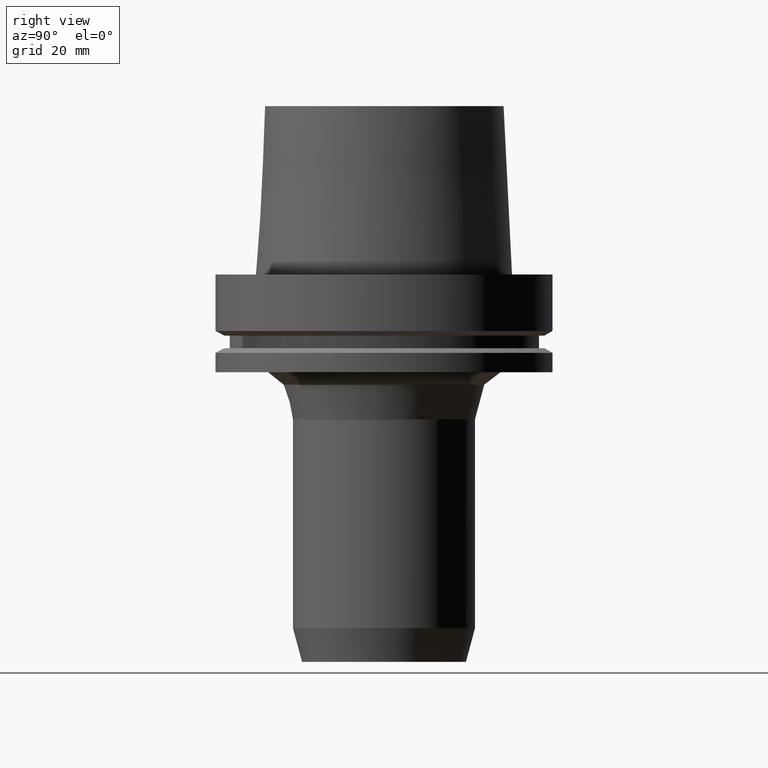
[diagram: clean part render]
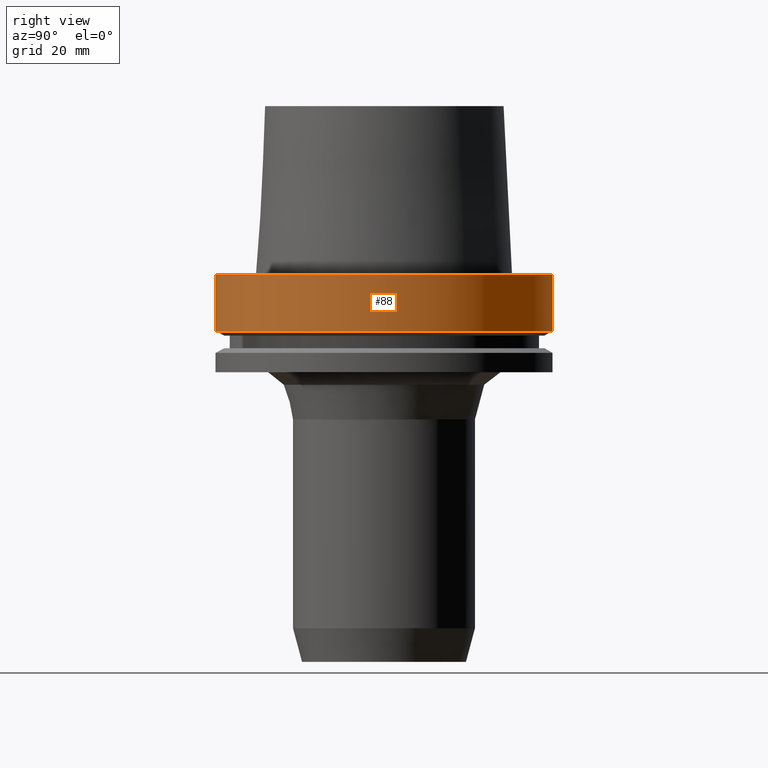
[diagram: same view with one face highlighted and labeled with its STEP entity id]
A machine part, right view. The second image highlights one B-rep face of the part: STEP entity #88.
In plain terms, the highlighted cylindrical surface (bore or boss wall) has radius 50 mm, axis along (0, 0, -1).
Its self-contained STEP definition (entity closure, byte-faithful):
#88=ADVANCED_FACE('',(#129,#130),#131,.T.);
#129=FACE_BOUND('',#175,.T.);
#130=FACE_BOUND('',#176,.T.);
#131=CYLINDRICAL_SURFACE('',#177,50.0);
#175=EDGE_LOOP('',(#247));
#176=EDGE_LOOP('',(#248));
#177=AXIS2_PLACEMENT_3D('',#249,#250,#251);
#247=ORIENTED_EDGE('',*,*,#275,.F.);
#248=ORIENTED_EDGE('',*,*,#274,.T.);
#249=CARTESIAN_POINT('',(5.12894471071549E-016,1.0257889421431E-015,-8.37620237));
#250=DIRECTION('',(6.12323399573677E-017,1.22464679914735E-016,-1.0));
#251=DIRECTION('',(-1.23259516440783E-032,1.0,1.22464679914735E-016));
#274=EDGE_CURVE('',#301,#301,#302,.T.);
#275=EDGE_CURVE('',#303,#303,#304,.T.);
#301=VERTEX_POINT('',#331);
#302=CIRCLE('',#332,50.0);
#303=VERTEX_POINT('',#333);
#304=CIRCLE('',#334,50.0);
#331=CARTESIAN_POINT('',(1.0257889421431E-015,50.0,-16.75240474));
#332=AXIS2_PLACEMENT_3D('',#373,#374,#375);
#333=CARTESIAN_POINT('',(-6.10174348208179E-031,50.0,6.02323399573676E-015));
#334=AXIS2_PLACEMENT_3D('',#376,#377,#378);
#373=CARTESIAN_POINT('',(1.0257889421431E-015,2.05157788428619E-015,-16.75240474));
#374=DIRECTION('',(-6.12323399573677E-017,-1.22464679914735E-016,1.0));
#375=DIRECTION('',(-1.23259516440783E-032,1.0,1.22464679914735E-016));
#376=CARTESIAN_POINT('',(0.0,0.0,0.0));
#377=DIRECTION('',(-6.12323399573677E-017,-1.22464679914735E-016,1.0));
#378=DIRECTION('',(-1.23259516440783E-032,1.0,1.22464679914735E-016));